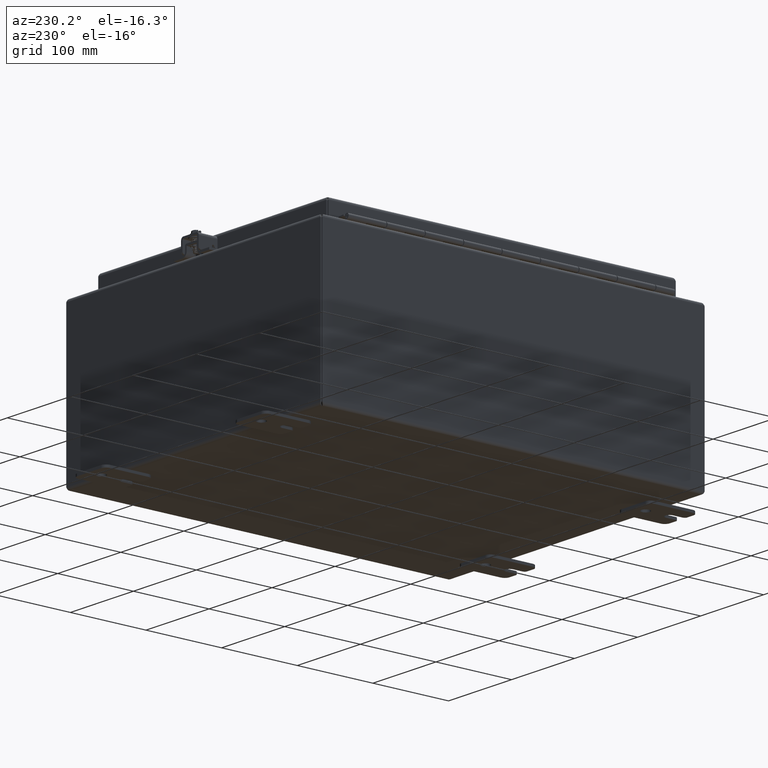
[diagram: clean part render]
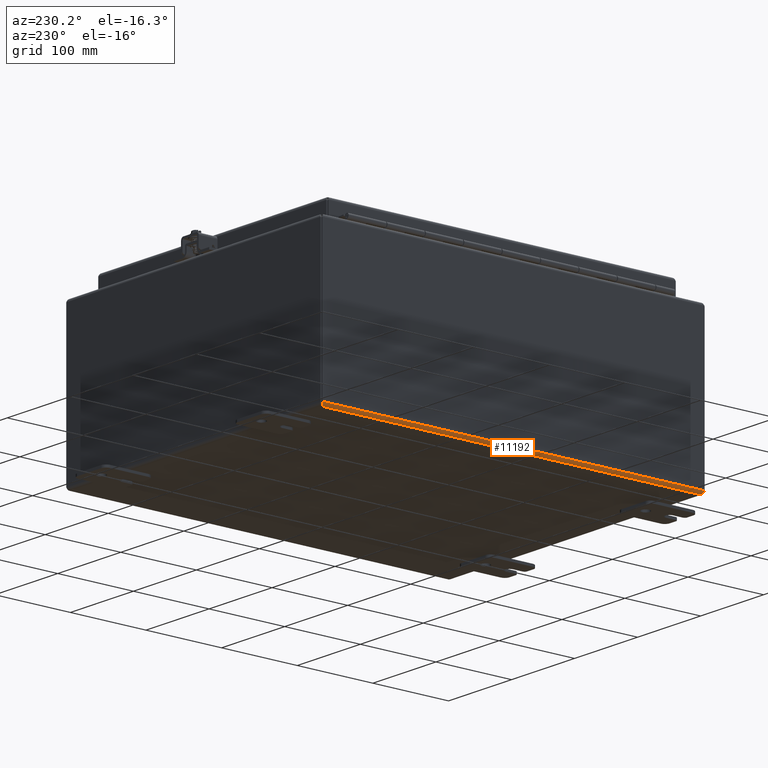
[diagram: same view with one face highlighted and labeled with its STEP entity id]
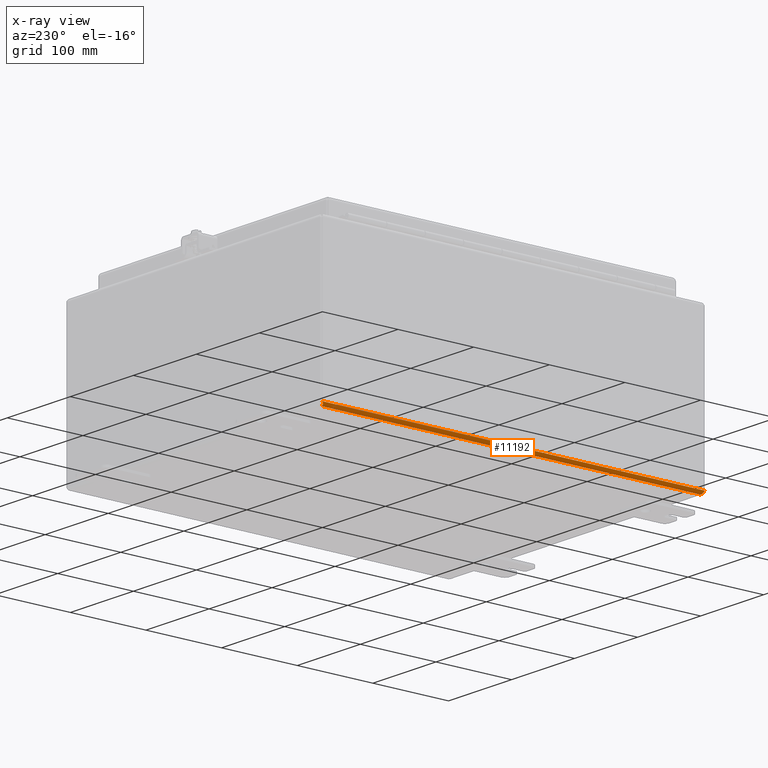
[diagram: x-ray of the same camera — body ghosted, the highlighted face saturated]
A machine part, auxiliary view. The second image highlights one B-rep face of the part: STEP entity #11192.
The next image is the same camera in x-ray: the body ghosted, the highlighted face saturated — about 0% of this face is hidden behind the body in this view.
In plain terms, the highlighted cylindrical surface (edge-blend (fillet) strip) has radius 3.8798 mm, axis along (-0, 1, 0).
Its self-contained STEP definition (entity closure, byte-faithful):
#353=B_SPLINE_CURVE_WITH_KNOTS('',3,(#15978,#15979,#15980,#15981,#15982,
#15983,#15984),.UNSPECIFIED.,.F.,.F.,(4,3,4),(0.,0.897597901025647,1.57079632679488),
 .UNSPECIFIED.);
#354=B_SPLINE_CURVE_WITH_KNOTS('',3,(#15987,#15988,#15989,#15990,#15991,
#15992,#15993),.UNSPECIFIED.,.F.,.F.,(4,3,4),(0.,0.673198425769249,1.57079632679491),
 .UNSPECIFIED.);
#1488=FACE_OUTER_BOUND('',#2152,.T.);
#2152=EDGE_LOOP('',(#8001,#8002,#8003,#8004));
#2872=LINE('',#15976,#3877);
#2873=LINE('',#15986,#3878);
#3877=VECTOR('',#13006,19.8805857864376);
#3878=VECTOR('',#13007,19.6945);
#5249=VERTEX_POINT('',#15974);
#5250=VERTEX_POINT('',#15975);
#5251=VERTEX_POINT('',#15977);
#5252=VERTEX_POINT('',#15985);
#6311=EDGE_CURVE('',#5249,#5250,#2872,.T.);
#6312=EDGE_CURVE('',#5251,#5249,#353,.T.);
#6313=EDGE_CURVE('',#5252,#5251,#2873,.T.);
#6314=EDGE_CURVE('',#5250,#5252,#354,.T.);
#8001=ORIENTED_EDGE('',*,*,#6311,.F.);
#8002=ORIENTED_EDGE('',*,*,#6312,.F.);
#8003=ORIENTED_EDGE('',*,*,#6313,.F.);
#8004=ORIENTED_EDGE('',*,*,#6314,.F.);
#11001=CYLINDRICAL_SURFACE('',#11897,0.15275);
#11192=ADVANCED_FACE('',(#1488),#11001,.T.);
#11897=AXIS2_PLACEMENT_3D('',#15973,#13004,#13005);
#13004=DIRECTION('center_axis',(-2.09805925913415E-16,1.,0.));
#13005=DIRECTION('ref_axis',(0.,0.,-1.));
#13006=DIRECTION('',(3.60266762523723E-16,-1.,-1.32714761177542E-30));
#13007=DIRECTION('',(-1.42040282592206E-16,1.,0.));
#15973=CARTESIAN_POINT('Origin',(-7.84725,2.79741234551221E-15,0.15275));
#15974=CARTESIAN_POINT('',(-8.,9.94029289321881,0.152750000000006));
#15975=CARTESIAN_POINT('',(-7.99999999999999,-9.94029289321881,0.152750000000003));
#15976=CARTESIAN_POINT('',(-8.,1.4358155059745E-15,0.152750000000002));
#15977=CARTESIAN_POINT('',(-7.84725,9.84725,-2.18547839493141E-17));
#15978=CARTESIAN_POINT('Ctrl Pts',(-7.84725000000001,9.84725,-6.55643518479423E-17));
#15979=CARTESIAN_POINT('Ctrl Pts',(-7.89295269312723,9.8649724558512,2.59187330598889E-15));
#15980=CARTESIAN_POINT('Ctrl Pts',(-7.93814450689794,9.88269491170241,0.0219385263262857));
#15981=CARTESIAN_POINT('Ctrl Pts',(-7.96664275615446,9.90041736755361,0.0574895058811714));
#15982=CARTESIAN_POINT('Ctrl Pts',(-7.98801644309684,9.91370920944201,0.0841527405473357));
#15983=CARTESIAN_POINT('Ctrl Pts',(-8.,9.92700105133041,0.118472980154589));
#15984=CARTESIAN_POINT('Ctrl Pts',(-8.,9.94029289321881,0.152750000000006));
#15985=CARTESIAN_POINT('',(-7.84725,-9.84725,-2.18547839493141E-17));
#15986=CARTESIAN_POINT('',(-7.84725,-4.923625,0.));
#15987=CARTESIAN_POINT('Ctrl Pts',(-7.99999999999999,-9.94029289321881,
0.152750000000004));
#15988=CARTESIAN_POINT('Ctrl Pts',(-7.99999999999999,-9.92700105133041,
0.118472980154586));
#15989=CARTESIAN_POINT('Ctrl Pts',(-7.98801644309684,-9.91370920944201,
0.0841527405473325));
#15990=CARTESIAN_POINT('Ctrl Pts',(-7.96664275615445,-9.90041736755361,
0.0574895058811687));
#15991=CARTESIAN_POINT('Ctrl Pts',(-7.93814450689793,-9.88269491170241,
0.0219385263262839));
#15992=CARTESIAN_POINT('Ctrl Pts',(-7.89295269312722,-9.8649724558512,3.31243073631774E-15));
#15993=CARTESIAN_POINT('Ctrl Pts',(-7.84725,-9.84725,2.63350146589235E-15));